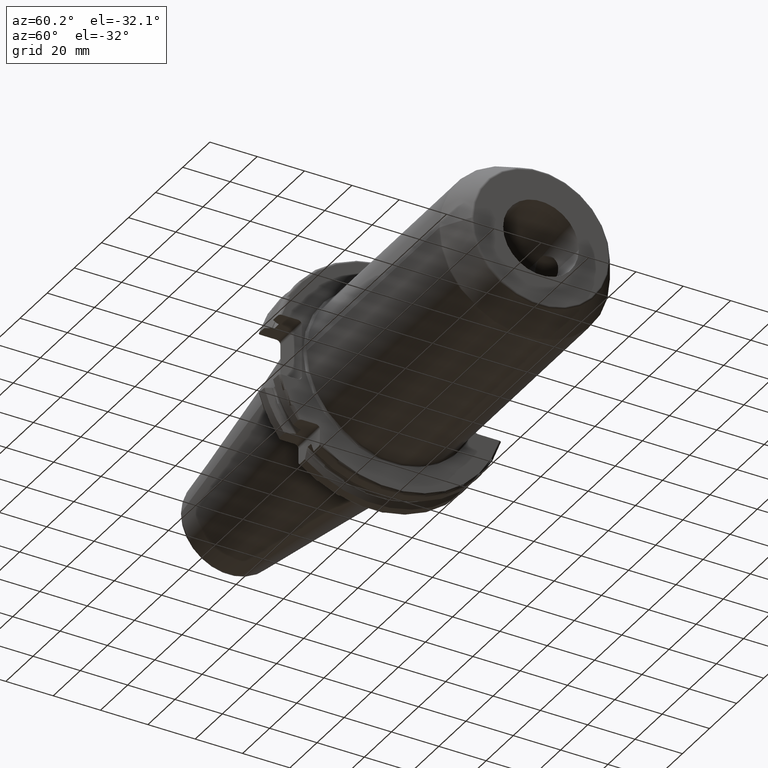
[diagram: clean part render]
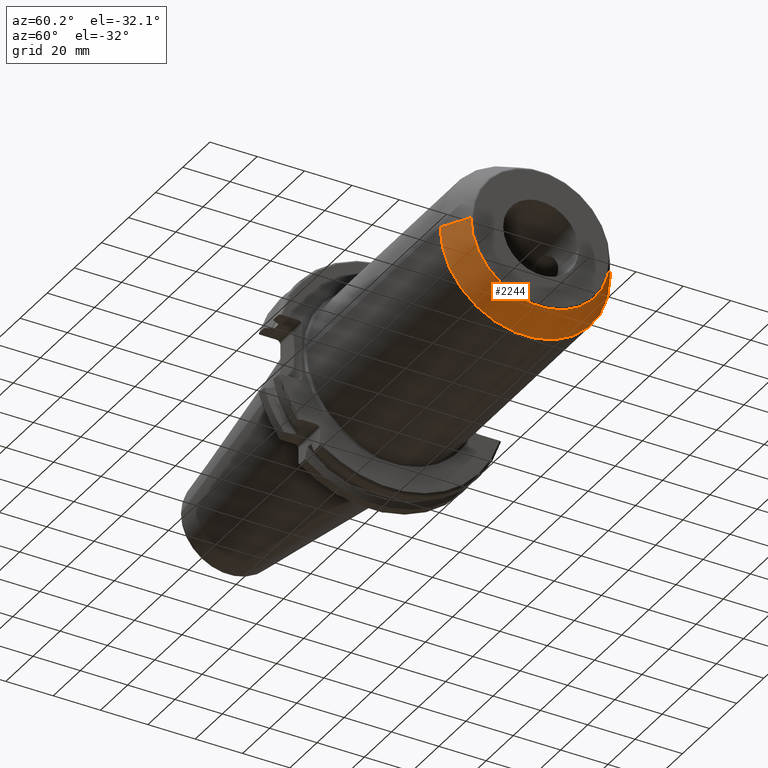
[diagram: same view with one face highlighted and labeled with its STEP entity id]
A machine part, auxiliary view. The second image highlights one B-rep face of the part: STEP entity #2244.
In plain terms, the highlighted conical surface has half-angle 30 deg.
Its self-contained STEP definition (entity closure, byte-faithful):
#507=CARTESIAN_POINT('',(1.182320508076E2,0.E0,0.E0));
#508=DIRECTION('',(-1.E0,0.E0,0.E0));
#509=DIRECTION('',(0.E0,1.E0,0.E0));
#510=AXIS2_PLACEMENT_3D('',#507,#508,#509);
#512=DIRECTION('',(-8.660254037844E-1,-5.E-1,1.108453386749E-13));
#513=VECTOR('',#512,1.301110699893E1);
#514=CARTESIAN_POINT('',(1.295E2,-2.936047190432E1,4.179806662228E-13));
#515=LINE('',#514,#513);
#516=CARTESIAN_POINT('',(1.295E2,0.E0,0.E0));
#517=DIRECTION('',(-1.E0,0.E0,0.E0));
#518=DIRECTION('',(0.E0,1.E0,0.E0));
#519=AXIS2_PLACEMENT_3D('',#516,#517,#518);
#521=DIRECTION('',(-8.660254037844E-1,5.E-1,-1.109465089328E-13));
#522=VECTOR('',#521,1.301110699893E1);
#523=CARTESIAN_POINT('',(1.295E2,2.936047190432E1,-4.188795714213E-13));
#524=LINE('',#523,#522);
#1813=CARTESIAN_POINT('',(1.182320508076E2,3.586602540378E1,0.E0));
#1814=CARTESIAN_POINT('',(1.182320508076E2,-3.586602540378E1,0.E0));
#1815=VERTEX_POINT('',#1813);
#1816=VERTEX_POINT('',#1814);
#1817=CARTESIAN_POINT('',(1.295E2,2.936047190432E1,0.E0));
#1818=CARTESIAN_POINT('',(1.295E2,-2.936047190432E1,0.E0));
#1819=VERTEX_POINT('',#1817);
#1820=VERTEX_POINT('',#1818);
#2230=CARTESIAN_POINT('',(1.238660254038E2,0.E0,0.E0));
#2231=DIRECTION('',(-1.E0,0.E0,0.E0));
#2232=DIRECTION('',(0.E0,1.E0,0.E0));
#2233=AXIS2_PLACEMENT_3D('',#2230,#2231,#2232);
#2234=CONICAL_SURFACE('',#2233,3.261324865405E1,3.E1);
#2236=ORIENTED_EDGE('',*,*,#2235,.T.);
#2238=ORIENTED_EDGE('',*,*,#2237,.F.);
#2239=ORIENTED_EDGE('',*,*,#2220,.F.);
#2241=ORIENTED_EDGE('',*,*,#2240,.T.);
#2242=EDGE_LOOP('',(#2236,#2238,#2239,#2241));
#2243=FACE_OUTER_BOUND('',#2242,.F.);
#2244=ADVANCED_FACE('',(#2243),#2234,.T.);
#511=CIRCLE('',#510,3.586602540378E1);
#520=CIRCLE('',#519,2.936047190432E1);
#2220=EDGE_CURVE('',#1819,#1820,#520,.T.);
#2235=EDGE_CURVE('',#1815,#1816,#511,.T.);
#2237=EDGE_CURVE('',#1820,#1816,#515,.T.);
#2240=EDGE_CURVE('',#1819,#1815,#524,.T.);